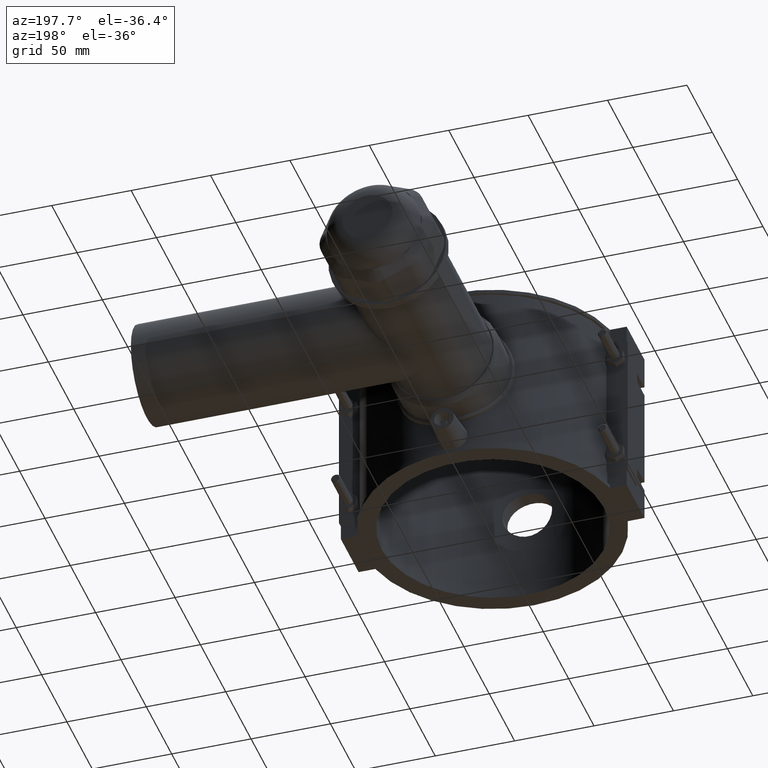
[diagram: clean part render]
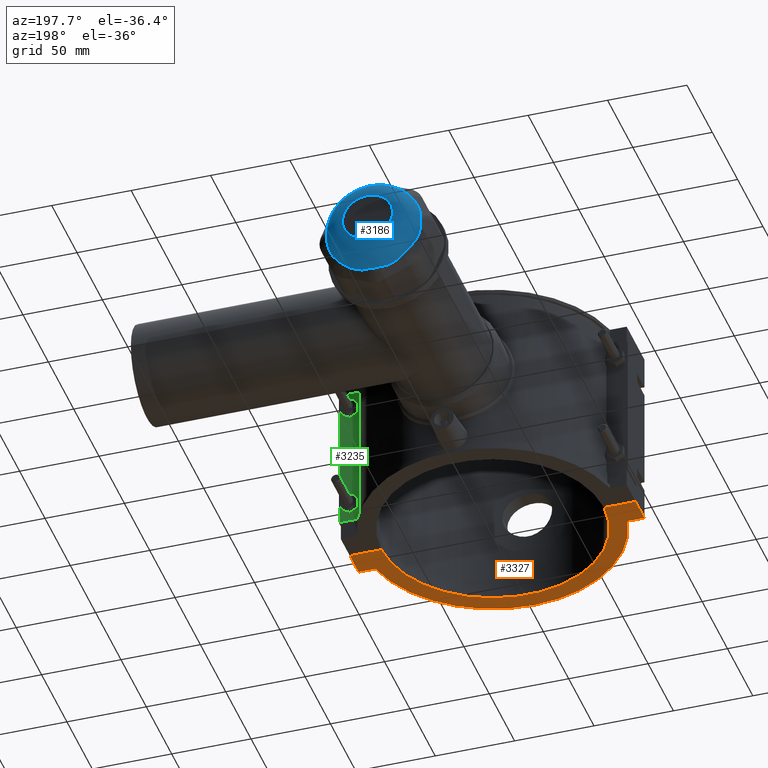
[diagram: same view with three faces highlighted in distinct colors, each labeled with its STEP entity id]
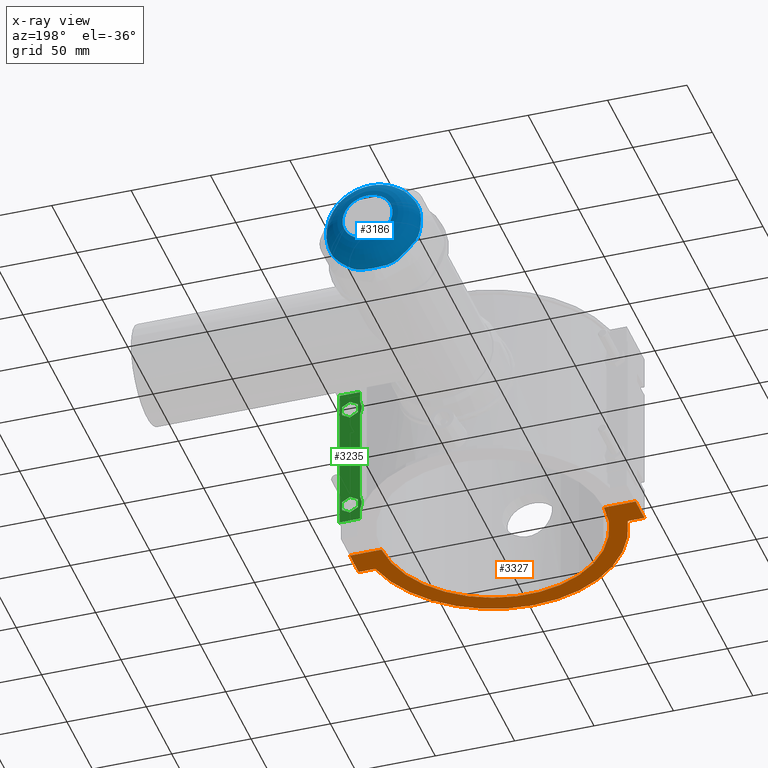
[diagram: x-ray of the same camera — body ghosted, the three highlighted faces saturated]
A machine part, auxiliary view with three faces highlighted in distinct colors.
The next image is the same camera in x-ray (body ghosted, the three faces saturated) — at least one of them is partly hidden behind the body in this view.
Their STEP definitions:

[orange] entity #3327 — the highlighted planar face has unit normal (0, 0, 1).
#125=LINE('',#5617,#412);
#144=LINE('',#5788,#431);
#270=LINE('',#6445,#557);
#311=LINE('',#6715,#598);
#316=LINE('',#6724,#603);
#319=LINE('',#6734,#606);
#412=VECTOR('',#3955,10.5074920762969);
#431=VECTOR('',#4008,10.5074920762969);
#557=VECTOR('',#4342,17.45);
#598=VECTOR('',#4479,20.0000178571451);
#603=VECTOR('',#4488,17.45);
#606=VECTOR('',#4501,20.0000178571452);
#955=FACE_OUTER_BOUND('',#1200,.T.);
#1200=EDGE_LOOP('',(#2951,#2952,#2953,#2954,#2955,#2956,#2957,#2958));
#1259=CIRCLE('',#3445,81.396);
#1324=CIRCLE('',#3626,70.);
#1417=VERTEX_POINT('',#5546);
#1418=VERTEX_POINT('',#5547);
#1438=VERTEX_POINT('',#5615);
#1467=VERTEX_POINT('',#5787);
#1590=VERTEX_POINT('',#6443);
#1628=VERTEX_POINT('',#6712);
#1629=VERTEX_POINT('',#6714);
#1632=VERTEX_POINT('',#6728);
#1768=EDGE_CURVE('',#1417,#1418,#1259,.T.);
#1792=EDGE_CURVE('',#1417,#1438,#125,.T.);
#1827=EDGE_CURVE('',#1467,#1418,#144,.T.);
#2008=EDGE_CURVE('',#1438,#1590,#270,.T.);
#2074=EDGE_CURVE('',#1629,#1628,#311,.T.);
#2079=EDGE_CURVE('',#1628,#1467,#316,.T.);
#2081=EDGE_CURVE('',#1632,#1629,#1324,.T.);
#2084=EDGE_CURVE('',#1590,#1632,#319,.T.);
#2951=ORIENTED_EDGE('',*,*,#2074,.T.);
#2952=ORIENTED_EDGE('',*,*,#2079,.T.);
#2953=ORIENTED_EDGE('',*,*,#1827,.T.);
#2954=ORIENTED_EDGE('',*,*,#1768,.F.);
#2955=ORIENTED_EDGE('',*,*,#1792,.T.);
#2956=ORIENTED_EDGE('',*,*,#2008,.T.);
#2957=ORIENTED_EDGE('',*,*,#2084,.T.);
#2958=ORIENTED_EDGE('',*,*,#2081,.T.);
#3137=PLANE('',#3628);
#3327=ADVANCED_FACE('',(#955),#3137,.F.);
#3445=AXIS2_PLACEMENT_3D('',#5548,#3922,#3923);
#3626=AXIS2_PLACEMENT_3D('',#6729,#4494,#4495);
#3628=AXIS2_PLACEMENT_3D('',#6733,#4499,#4500);
#3922=DIRECTION('center_axis',(0.,0.,1.));
#3923=DIRECTION('ref_axis',(-0.976614427290077,-0.21499828001376,0.));
#3955=DIRECTION('',(-1.,0.,0.));
#4008=DIRECTION('',(-1.,0.,0.));
#4342=DIRECTION('',(0.,1.,0.));
#4479=DIRECTION('',(1.,1.92747052886312E-19,0.));
#4488=DIRECTION('',(0.,-1.,0.));
#4494=DIRECTION('center_axis',(0.,0.,1.));
#4495=DIRECTION('ref_axis',(-1.,0.,0.));
#4499=DIRECTION('center_axis',(0.,0.,1.));
#4500=DIRECTION('ref_axis',(1.,0.,0.));
#4501=DIRECTION('',(1.,1.92747052886312E-19,0.));
#5546=CARTESIAN_POINT('',(-79.4925079237031,-17.5,-59.));
#5547=CARTESIAN_POINT('',(79.4925079237031,-17.5,-59.));
#5548=CARTESIAN_POINT('Origin',(0.,0.,-59.));
#5615=CARTESIAN_POINT('',(-90.,-17.5,-59.));
#5617=CARTESIAN_POINT('',(-90.,-17.5,-59.));
#5787=CARTESIAN_POINT('',(90.,-17.5,-59.));
#5788=CARTESIAN_POINT('',(77.8574980332659,-17.5,-59.));
#6443=CARTESIAN_POINT('',(-90.,-0.0500000000000078,-59.));
#6445=CARTESIAN_POINT('',(-90.,17.5,-59.));
#6712=CARTESIAN_POINT('',(90.,-0.0500000000000078,-59.));
#6714=CARTESIAN_POINT('',(69.9999821428549,-0.0500000000000078,-59.));
#6715=CARTESIAN_POINT('',(-87.4661928866538,-0.0500000000000078,-59.));
#6724=CARTESIAN_POINT('',(90.,-17.5,-59.));
#6728=CARTESIAN_POINT('',(-69.9999821428549,-0.0500000000000078,-59.));
#6729=CARTESIAN_POINT('Origin',(0.,0.,-59.));
#6733=CARTESIAN_POINT('Origin',(-84.9323857733075,3.14881777612425E-16,
-59.));
#6734=CARTESIAN_POINT('',(-87.4661928866538,-0.0500000000000078,-59.));

[blue] entity #3186 — the highlighted toroidal blend (fillet) surface has major radius 15.7729 mm and minor (blend) radius 14 mm.
#20=TOROIDAL_SURFACE('',#3413,15.7728831169074,14.);
#622=FACE_BOUND('',#1014,.T.);
#675=B_SPLINE_CURVE_WITH_KNOTS('',3,(#4857,#4858,#4859,#4860,#4861,#4862,
#4863,#4864,#4865,#4866,#4867),.UNSPECIFIED.,.F.,.F.,(4,2,3,2,4),(-0.739140793571753,
-0.439138566436394,0.,0.439138566436393,0.739140793571752),
 .UNSPECIFIED.);
#676=B_SPLINE_CURVE_WITH_KNOTS('',3,(#4886,#4887,#4888,#4889,#4890,#4891,
#4892,#4893,#4894,#4895,#4896),.UNSPECIFIED.,.F.,.F.,(4,2,3,2,4),(-0.739140793571748,
-0.439138566436393,0.,0.439138566436393,0.739140793571747),
 .UNSPECIFIED.);
#677=B_SPLINE_CURVE_WITH_KNOTS('',3,(#4912,#4913,#4914,#4915,#4916,#4917,
#4918,#4919,#4920,#4921,#4922),.UNSPECIFIED.,.F.,.F.,(4,2,3,2,4),(-0.739140793571746,
-0.439138566436392,0.,0.439138566436392,0.739140793571746),
 .UNSPECIFIED.);
#678=B_SPLINE_CURVE_WITH_KNOTS('',3,(#4938,#4939,#4940,#4941,#4942,#4943,
#4944,#4945,#4946,#4947,#4948),.UNSPECIFIED.,.F.,.F.,(4,2,3,2,4),(-0.739140793571746,
-0.439138566436398,0.,0.439138566436398,0.739140793571746),
 .UNSPECIFIED.);
#679=B_SPLINE_CURVE_WITH_KNOTS('',3,(#4964,#4965,#4966,#4967,#4968,#4969,
#4970,#4971,#4972,#4973,#4974),.UNSPECIFIED.,.F.,.F.,(4,2,3,2,4),(-0.739140793571751,
-0.439138566436399,0.,0.439138566436399,0.73914079357175),.UNSPECIFIED.);
#680=B_SPLINE_CURVE_WITH_KNOTS('',3,(#4990,#4991,#4992,#4993,#4994,#4995,
#4996,#4997,#4998,#4999,#5000),.UNSPECIFIED.,.F.,.F.,(4,2,3,2,4),(-0.739140793571746,
-0.439138566436396,0.,0.439138566436396,0.739140793571745),
 .UNSPECIFIED.);
#681=B_SPLINE_CURVE_WITH_KNOTS('',3,(#5016,#5017,#5018,#5019,#5020,#5021,
#5022,#5023,#5024,#5025,#5026),.UNSPECIFIED.,.F.,.F.,(4,2,3,2,4),(-0.739140793571747,
-0.439138566436401,0.,0.439138566436402,0.739140793571747),
 .UNSPECIFIED.);
#682=B_SPLINE_CURVE_WITH_KNOTS('',3,(#5042,#5043,#5044,#5045,#5046,#5047,
#5048,#5049,#5050,#5051,#5052),.UNSPECIFIED.,.F.,.F.,(4,2,3,2,4),(-0.739140793571748,
-0.439138566436392,0.,0.439138566436392,0.739140793571747),
 .UNSPECIFIED.);
#814=FACE_OUTER_BOUND('',#1013,.T.);
#1013=EDGE_LOOP('',(#2254,#2255,#2256,#2257,#2258,#2259,#2260,#2261,#2262,
#2263,#2264,#2265,#2266,#2267,#2268,#2269));
#1014=EDGE_LOOP('',(#2270));
#1233=CIRCLE('',#3382,29.68);
#1234=CIRCLE('',#3384,29.68);
#1235=CIRCLE('',#3386,29.68);
#1236=CIRCLE('',#3388,29.68);
#1237=CIRCLE('',#3390,29.68);
#1238=CIRCLE('',#3392,29.68);
#1239=CIRCLE('',#3394,29.68);
#1240=CIRCLE('',#3396,29.68);
#1247=CIRCLE('',#3414,15.7728831169074);
#1336=VERTEX_POINT('',#4855);
#1337=VERTEX_POINT('',#4856);
#1344=VERTEX_POINT('',#4884);
#1345=VERTEX_POINT('',#4885);
#1350=VERTEX_POINT('',#4910);
#1351=VERTEX_POINT('',#4911);
#1356=VERTEX_POINT('',#4936);
#1357=VERTEX_POINT('',#4937);
#1362=VERTEX_POINT('',#4962);
#1363=VERTEX_POINT('',#4963);
#1368=VERTEX_POINT('',#4988);
#1369=VERTEX_POINT('',#4989);
#1374=VERTEX_POINT('',#5014);
#1375=VERTEX_POINT('',#5015);
#1380=VERTEX_POINT('',#5040);
#1381=VERTEX_POINT('',#5041);
#1395=VERTEX_POINT('',#5119);
#1645=EDGE_CURVE('',#1336,#1337,#675,.T.);
#1654=EDGE_CURVE('',#1344,#1345,#676,.T.);
#1662=EDGE_CURVE('',#1350,#1351,#677,.T.);
#1670=EDGE_CURVE('',#1356,#1357,#678,.T.);
#1678=EDGE_CURVE('',#1362,#1363,#679,.T.);
#1686=EDGE_CURVE('',#1368,#1369,#680,.T.);
#1694=EDGE_CURVE('',#1374,#1375,#681,.T.);
#1702=EDGE_CURVE('',#1380,#1381,#682,.T.);
#1709=EDGE_CURVE('',#1357,#1350,#1233,.T.);
#1710=EDGE_CURVE('',#1351,#1344,#1234,.T.);
#1711=EDGE_CURVE('',#1345,#1336,#1235,.T.);
#1712=EDGE_CURVE('',#1337,#1380,#1236,.T.);
#1713=EDGE_CURVE('',#1381,#1374,#1237,.T.);
#1714=EDGE_CURVE('',#1375,#1368,#1238,.T.);
#1715=EDGE_CURVE('',#1369,#1362,#1239,.T.);
#1716=EDGE_CURVE('',#1363,#1356,#1240,.T.);
#1736=EDGE_CURVE('',#1395,#1395,#1247,.T.);
#2254=ORIENTED_EDGE('',*,*,#1711,.T.);
#2255=ORIENTED_EDGE('',*,*,#1645,.T.);
#2256=ORIENTED_EDGE('',*,*,#1712,.T.);
#2257=ORIENTED_EDGE('',*,*,#1702,.T.);
#2258=ORIENTED_EDGE('',*,*,#1713,.T.);
#2259=ORIENTED_EDGE('',*,*,#1694,.T.);
#2260=ORIENTED_EDGE('',*,*,#1714,.T.);
#2261=ORIENTED_EDGE('',*,*,#1686,.T.);
#2262=ORIENTED_EDGE('',*,*,#1715,.T.);
#2263=ORIENTED_EDGE('',*,*,#1678,.T.);
#2264=ORIENTED_EDGE('',*,*,#1716,.T.);
#2265=ORIENTED_EDGE('',*,*,#1670,.T.);
#2266=ORIENTED_EDGE('',*,*,#1709,.T.);
#2267=ORIENTED_EDGE('',*,*,#1662,.T.);
#2268=ORIENTED_EDGE('',*,*,#1710,.T.);
#2269=ORIENTED_EDGE('',*,*,#1654,.T.);
#2270=ORIENTED_EDGE('',*,*,#1736,.T.);
#3186=ADVANCED_FACE('',(#814,#622),#20,.T.);
#3382=AXIS2_PLACEMENT_3D('',#5063,#3768,#3769);
#3384=AXIS2_PLACEMENT_3D('',#5065,#3772,#3773);
#3386=AXIS2_PLACEMENT_3D('',#5067,#3776,#3777);
#3388=AXIS2_PLACEMENT_3D('',#5069,#3780,#3781);
#3390=AXIS2_PLACEMENT_3D('',#5071,#3784,#3785);
#3392=AXIS2_PLACEMENT_3D('',#5073,#3788,#3789);
#3394=AXIS2_PLACEMENT_3D('',#5075,#3792,#3793);
#3396=AXIS2_PLACEMENT_3D('',#5077,#3796,#3797);
#3413=AXIS2_PLACEMENT_3D('',#5118,#3843,#3844);
#3414=AXIS2_PLACEMENT_3D('',#5120,#3845,#3846);
#3768=DIRECTION('center_axis',(0.,1.,3.06161699786838E-16));
#3769=DIRECTION('ref_axis',(1.,0.,0.));
#3772=DIRECTION('center_axis',(0.,1.,3.06161699786838E-16));
#3773=DIRECTION('ref_axis',(1.,0.,0.));
#3776=DIRECTION('center_axis',(0.,1.,3.06161699786838E-16));
#3777=DIRECTION('ref_axis',(1.,0.,0.));
#3780=DIRECTION('center_axis',(0.,1.,3.06161699786838E-16));
#3781=DIRECTION('ref_axis',(1.,0.,0.));
#3784=DIRECTION('center_axis',(0.,1.,3.06161699786838E-16));
#3785=DIRECTION('ref_axis',(1.,0.,0.));
#3788=DIRECTION('center_axis',(0.,1.,3.06161699786838E-16));
#3789=DIRECTION('ref_axis',(1.,0.,0.));
#3792=DIRECTION('center_axis',(0.,1.,3.06161699786838E-16));
#3793=DIRECTION('ref_axis',(1.,0.,0.));
#3796=DIRECTION('center_axis',(0.,1.,3.06161699786838E-16));
#3797=DIRECTION('ref_axis',(1.,0.,0.));
#3843=DIRECTION('center_axis',(0.,1.,3.06161699786838E-16));
#3844=DIRECTION('ref_axis',(-6.12323399573676E-17,0.,1.));
#3845=DIRECTION('center_axis',(0.,-1.,-3.06161699786838E-16));
#3846=DIRECTION('ref_axis',(-6.12323399573676E-17,-2.81552336727856E-16,
1.));
#4855=CARTESIAN_POINT('',(-3.90184513577027,234.61,-29.422406504847));
#4856=CARTESIAN_POINT('',(-18.0457620037616,234.61,-23.5638043130474));
#4857=CARTESIAN_POINT('Ctrl Pts',(-3.90184513577026,234.61,-29.422406504847));
#4858=CARTESIAN_POINT('Ctrl Pts',(-4.90075242815156,234.318690946782,-29.3239562038666));
#4859=CARTESIAN_POINT('Ctrl Pts',(-5.94830201251474,234.077546375748,-29.1510599615955));
#4860=CARTESIAN_POINT('Ctrl Pts',(-8.51875498828115,233.641468335236,-28.5583509473597));
#4861=CARTESIAN_POINT('Ctrl Pts',(-10.0374816359602,233.522812847651,-28.0577055466373));
#4862=CARTESIAN_POINT('Ctrl Pts',(-11.38985208085,233.522812847651,-27.4975353670114));
#4863=CARTESIAN_POINT('Ctrl Pts',(-12.7422225257398,233.522812847651,-26.9373651873856));
#4864=CARTESIAN_POINT('Ctrl Pts',(-14.170134194903,233.641468335236,-26.2174730338637));
#4865=CARTESIAN_POINT('Ctrl Pts',(-16.4068274880251,234.077546375748,-24.8189968672146));
#4866=CARTESIAN_POINT('Ctrl Pts',(-17.269813008109,234.318690946782,-24.2005235578338));
#4867=CARTESIAN_POINT('Ctrl Pts',(-18.0457620037616,234.61,-23.5638043130474));
#4884=CARTESIAN_POINT('',(18.0457620037616,234.61,-23.5638043130474));
#4885=CARTESIAN_POINT('',(3.90184513577035,234.61,-29.422406504847));
#4886=CARTESIAN_POINT('Ctrl Pts',(18.0457620037616,234.61,-23.5638043130474));
#4887=CARTESIAN_POINT('Ctrl Pts',(17.269813008109,234.318690946782,-24.2005235578338));
#4888=CARTESIAN_POINT('Ctrl Pts',(16.4068274880251,234.077546375748,-24.8189968672146));
#4889=CARTESIAN_POINT('Ctrl Pts',(14.1701341949031,233.641468335236,-26.2174730338637));
#4890=CARTESIAN_POINT('Ctrl Pts',(12.7422225257398,233.522812847651,-26.9373651873855));
#4891=CARTESIAN_POINT('Ctrl Pts',(11.38985208085,233.522812847651,-27.4975353670114));
#4892=CARTESIAN_POINT('Ctrl Pts',(10.0374816359602,233.522812847651,-28.0577055466373));
#4893=CARTESIAN_POINT('Ctrl Pts',(8.51875498828118,233.641468335236,-28.5583509473597));
#4894=CARTESIAN_POINT('Ctrl Pts',(5.94830201251479,234.077546375748,-29.1510599615955));
#4895=CARTESIAN_POINT('Ctrl Pts',(4.90075242815164,234.318690946782,-29.3239562038666));
#4896=CARTESIAN_POINT('Ctrl Pts',(3.90184513577035,234.61,-29.422406504847));
#4910=CARTESIAN_POINT('',(29.422406504847,234.61,-3.90184513577027));
#4911=CARTESIAN_POINT('',(23.5638043130475,234.61,-18.0457620037615));
#4912=CARTESIAN_POINT('Ctrl Pts',(29.422406504847,234.61,-3.90184513577026));
#4913=CARTESIAN_POINT('Ctrl Pts',(29.3239562038666,234.318690946782,-4.90075242815154));
#4914=CARTESIAN_POINT('Ctrl Pts',(29.1510599615956,234.077546375748,-5.94830201251471));
#4915=CARTESIAN_POINT('Ctrl Pts',(28.5583509473598,233.641468335236,-8.51875498828109));
#4916=CARTESIAN_POINT('Ctrl Pts',(28.0577055466374,233.522812847651,-10.0374816359602));
#4917=CARTESIAN_POINT('Ctrl Pts',(27.4975353670115,233.522812847651,-11.3898520808499));
#4918=CARTESIAN_POINT('Ctrl Pts',(26.9373651873856,233.522812847651,-12.7422225257397));
#4919=CARTESIAN_POINT('Ctrl Pts',(26.2174730338637,233.641468335236,-14.170134194903));
#4920=CARTESIAN_POINT('Ctrl Pts',(24.8189968672147,234.077546375748,-16.406827488025));
#4921=CARTESIAN_POINT('Ctrl Pts',(24.2005235578339,234.318690946782,-17.2698130081089));
#4922=CARTESIAN_POINT('Ctrl Pts',(23.5638043130475,234.61,-18.0457620037615));
#4936=CARTESIAN_POINT('',(23.5638043130475,234.61,18.0457620037616));
#4937=CARTESIAN_POINT('',(29.422406504847,234.61,3.90184513577041));
#4938=CARTESIAN_POINT('Ctrl Pts',(23.5638043130475,234.61,18.0457620037616));
#4939=CARTESIAN_POINT('Ctrl Pts',(24.2005235578339,234.318690946782,17.2698130081091));
#4940=CARTESIAN_POINT('Ctrl Pts',(24.8189968672146,234.077546375748,16.4068274880252));
#4941=CARTESIAN_POINT('Ctrl Pts',(26.2174730338637,233.641468335236,14.1701341949031));
#4942=CARTESIAN_POINT('Ctrl Pts',(26.9373651873856,233.522812847651,12.7422225257398));
#4943=CARTESIAN_POINT('Ctrl Pts',(27.4975353670115,233.522812847651,11.3898520808501));
#4944=CARTESIAN_POINT('Ctrl Pts',(28.0577055466374,233.522812847651,10.0374816359603));
#4945=CARTESIAN_POINT('Ctrl Pts',(28.5583509473598,233.641468335236,8.5187549882812));
#4946=CARTESIAN_POINT('Ctrl Pts',(29.1510599615956,234.077546375748,5.94830201251481));
#4947=CARTESIAN_POINT('Ctrl Pts',(29.3239562038666,234.318690946782,4.90075242815167));
#4948=CARTESIAN_POINT('Ctrl Pts',(29.422406504847,234.61,3.90184513577041));
#4962=CARTESIAN_POINT('',(3.90184513577028,234.61,29.4224065048471));
#4963=CARTESIAN_POINT('',(18.0457620037616,234.61,23.5638043130475));
#4964=CARTESIAN_POINT('Ctrl Pts',(3.90184513577027,234.61,29.4224065048471));
#4965=CARTESIAN_POINT('Ctrl Pts',(4.90075242815156,234.318690946782,29.3239562038667));
#4966=CARTESIAN_POINT('Ctrl Pts',(5.94830201251471,234.077546375748,29.1510599615956));
#4967=CARTESIAN_POINT('Ctrl Pts',(8.51875498828111,233.641468335236,28.5583509473599));
#4968=CARTESIAN_POINT('Ctrl Pts',(10.0374816359602,233.522812847651,28.0577055466374));
#4969=CARTESIAN_POINT('Ctrl Pts',(11.38985208085,233.522812847651,27.4975353670115));
#4970=CARTESIAN_POINT('Ctrl Pts',(12.7422225257398,233.522812847651,26.9373651873857));
#4971=CARTESIAN_POINT('Ctrl Pts',(14.1701341949031,233.641468335236,26.2174730338637));
#4972=CARTESIAN_POINT('Ctrl Pts',(16.4068274880251,234.077546375748,24.8189968672147));
#4973=CARTESIAN_POINT('Ctrl Pts',(17.269813008109,234.318690946782,24.2005235578339));
#4974=CARTESIAN_POINT('Ctrl Pts',(18.0457620037616,234.61,23.5638043130475));
#4988=CARTESIAN_POINT('',(-18.0457620037616,234.61,23.5638043130475));
#4989=CARTESIAN_POINT('',(-3.90184513577035,234.61,29.4224065048471));
#4990=CARTESIAN_POINT('Ctrl Pts',(-18.0457620037616,234.61,23.5638043130475));
#4991=CARTESIAN_POINT('Ctrl Pts',(-17.269813008109,234.318690946782,24.2005235578339));
#4992=CARTESIAN_POINT('Ctrl Pts',(-16.4068274880251,234.077546375748,24.8189968672147));
#4993=CARTESIAN_POINT('Ctrl Pts',(-14.1701341949031,233.641468335236,26.2174730338637));
#4994=CARTESIAN_POINT('Ctrl Pts',(-12.7422225257398,233.522812847651,26.9373651873856));
#4995=CARTESIAN_POINT('Ctrl Pts',(-11.38985208085,233.522812847651,27.4975353670115));
#4996=CARTESIAN_POINT('Ctrl Pts',(-10.0374816359602,233.522812847651,28.0577055466374));
#4997=CARTESIAN_POINT('Ctrl Pts',(-8.51875498828114,233.641468335236,28.5583509473598));
#4998=CARTESIAN_POINT('Ctrl Pts',(-5.94830201251477,234.077546375748,29.1510599615956));
#4999=CARTESIAN_POINT('Ctrl Pts',(-4.90075242815162,234.318690946782,29.3239562038667));
#5000=CARTESIAN_POINT('Ctrl Pts',(-3.90184513577035,234.61,29.4224065048471));
#5014=CARTESIAN_POINT('',(-29.422406504847,234.61,3.90184513577037));
#5015=CARTESIAN_POINT('',(-23.5638043130475,234.61,18.0457620037616));
#5016=CARTESIAN_POINT('Ctrl Pts',(-29.422406504847,234.61,3.90184513577036));
#5017=CARTESIAN_POINT('Ctrl Pts',(-29.3239562038666,234.318690946782,4.90075242815164));
#5018=CARTESIAN_POINT('Ctrl Pts',(-29.1510599615956,234.077546375748,5.94830201251477));
#5019=CARTESIAN_POINT('Ctrl Pts',(-28.5583509473598,233.641468335236,8.51875498828115));
#5020=CARTESIAN_POINT('Ctrl Pts',(-28.0577055466374,233.522812847651,10.0374816359602));
#5021=CARTESIAN_POINT('Ctrl Pts',(-27.4975353670115,233.522812847651,11.38985208085));
#5022=CARTESIAN_POINT('Ctrl Pts',(-26.9373651873856,233.522812847651,12.7422225257398));
#5023=CARTESIAN_POINT('Ctrl Pts',(-26.2174730338637,233.641468335236,14.1701341949031));
#5024=CARTESIAN_POINT('Ctrl Pts',(-24.8189968672146,234.077546375748,16.4068274880252));
#5025=CARTESIAN_POINT('Ctrl Pts',(-24.2005235578339,234.318690946782,17.2698130081091));
#5026=CARTESIAN_POINT('Ctrl Pts',(-23.5638043130475,234.61,18.0457620037616));
#5040=CARTESIAN_POINT('',(-23.5638043130475,234.61,-18.0457620037615));
#5041=CARTESIAN_POINT('',(-29.422406504847,234.61,-3.90184513577028));
#5042=CARTESIAN_POINT('Ctrl Pts',(-23.5638043130475,234.61,-18.0457620037615));
#5043=CARTESIAN_POINT('Ctrl Pts',(-24.2005235578339,234.318690946782,-17.2698130081089));
#5044=CARTESIAN_POINT('Ctrl Pts',(-24.8189968672147,234.077546375748,-16.406827488025));
#5045=CARTESIAN_POINT('Ctrl Pts',(-26.2174730338637,233.641468335236,-14.170134194903));
#5046=CARTESIAN_POINT('Ctrl Pts',(-26.9373651873856,233.522812847651,-12.7422225257397));
#5047=CARTESIAN_POINT('Ctrl Pts',(-27.4975353670115,233.522812847651,-11.3898520808499));
#5048=CARTESIAN_POINT('Ctrl Pts',(-28.0577055466374,233.522812847651,-10.0374816359602));
#5049=CARTESIAN_POINT('Ctrl Pts',(-28.5583509473598,233.641468335236,-8.51875498828111));
#5050=CARTESIAN_POINT('Ctrl Pts',(-29.1510599615956,234.077546375748,-5.94830201251472));
#5051=CARTESIAN_POINT('Ctrl Pts',(-29.3239562038666,234.318690946782,-4.90075242815156));
#5052=CARTESIAN_POINT('Ctrl Pts',(-29.422406504847,234.61,-3.90184513577027));
#5063=CARTESIAN_POINT('Origin',(0.,234.61,5.03972774019115E-14));
#5065=CARTESIAN_POINT('Origin',(0.,234.61,5.03972774019115E-14));
#5067=CARTESIAN_POINT('Origin',(0.,234.61,5.03972774019115E-14));
#5069=CARTESIAN_POINT('Origin',(0.,234.61,5.03972774019115E-14));
#5071=CARTESIAN_POINT('Origin',(0.,234.61,5.03972774019115E-14));
#5073=CARTESIAN_POINT('Origin',(0.,234.61,5.03972774019115E-14));
#5075=CARTESIAN_POINT('Origin',(0.,234.61,5.03972774019115E-14));
#5077=CARTESIAN_POINT('Origin',(0.,234.61,5.03972774019115E-14));
#5118=CARTESIAN_POINT('Origin',(0.,233.,4.99043570652546E-14));
#5119=CARTESIAN_POINT('',(2.89743162336689E-15,247.,-15.7728831169073));
#5120=CARTESIAN_POINT('Origin',(0.,247.,5.41906208622704E-14));

[green] entity #3235 — the highlighted planar face has unit normal (0, 1, 0).
#141=LINE('',#5688,#428);
#142=LINE('',#5701,#429);
#143=LINE('',#5714,#430);
#195=LINE('',#6046,#482);
#196=LINE('',#6048,#483);
#197=LINE('',#6079,#484);
#198=LINE('',#6082,#485);
#199=LINE('',#6084,#486);
#200=LINE('',#6086,#487);
#201=LINE('',#6088,#488);
#202=LINE('',#6090,#489);
#203=LINE('',#6091,#490);
#204=LINE('',#6094,#491);
#205=LINE('',#6096,#492);
#206=LINE('',#6098,#493);
#207=LINE('',#6100,#494);
#208=LINE('',#6102,#495);
#209=LINE('',#6103,#496);
#428=VECTOR('',#4001,5.76263824369603);
#429=VECTOR('',#4002,58.725276487392);
#430=VECTOR('',#4003,5.76263824369602);
#482=VECTOR('',#4103,94.4);
#483=VECTOR('',#4106,12.8740378481529);
#484=VECTOR('',#4111,12.8740378481529);
#485=VECTOR('',#4112,5.77350269189626);
#486=VECTOR('',#4113,5.77350269189626);
#487=VECTOR('',#4114,5.77350269189627);
#488=VECTOR('',#4115,5.77350269189625);
#489=VECTOR('',#4116,5.77350269189625);
#490=VECTOR('',#4117,5.77350269189627);
#491=VECTOR('',#4118,5.77350269189627);
#492=VECTOR('',#4119,5.77350269189624);
#493=VECTOR('',#4120,5.77350269189626);
#494=VECTOR('',#4121,5.77350269189626);
#495=VECTOR('',#4122,5.77350269189626);
#496=VECTOR('',#4123,5.77350269189626);
#637=FACE_BOUND('',#1078,.T.);
#638=FACE_BOUND('',#1079,.T.);
#704=B_SPLINE_CURVE_WITH_KNOTS('',3,(#6050,#6051,#6052,#6053,#6054,#6055),
 .UNSPECIFIED.,.F.,.F.,(4,2,4),(-0.350550771120855,-0.181216293577892,0.),
 .UNSPECIFIED.);
#705=B_SPLINE_CURVE_WITH_KNOTS('',3,(#6058,#6059,#6060,#6061,#6062,#6063),
 .UNSPECIFIED.,.F.,.F.,(4,2,4),(-0.352212270426485,-0.166195704153647,0.),
 .UNSPECIFIED.);
#706=B_SPLINE_CURVE_WITH_KNOTS('',3,(#6065,#6066,#6067,#6068,#6069,#6070),
 .UNSPECIFIED.,.F.,.F.,(4,2,4),(-0.350550771120381,-0.181216293715411,0.),
 .UNSPECIFIED.);
#707=B_SPLINE_CURVE_WITH_KNOTS('',3,(#6073,#6074,#6075,#6076,#6077,#6078),
 .UNSPECIFIED.,.F.,.F.,(4,2,4),(-0.352212270425811,-0.166195704084295,0.),
 .UNSPECIFIED.);
#863=FACE_OUTER_BOUND('',#1077,.T.);
#1077=EDGE_LOOP('',(#2530,#2531,#2532,#2533,#2534,#2535,#2536,#2537,#2538,
#2539,#2540,#2541));
#1078=EDGE_LOOP('',(#2542,#2543,#2544,#2545,#2546,#2547));
#1079=EDGE_LOOP('',(#2548,#2549,#2550,#2551,#2552,#2553));
#1280=CIRCLE('',#3493,7.5);
#1281=CIRCLE('',#3494,7.5);
#1459=VERTEX_POINT('',#5685);
#1460=VERTEX_POINT('',#5687);
#1461=VERTEX_POINT('',#5689);
#1462=VERTEX_POINT('',#5700);
#1463=VERTEX_POINT('',#5702);
#1464=VERTEX_POINT('',#5713);
#1511=VERTEX_POINT('',#6039);
#1514=VERTEX_POINT('',#6044);
#1515=VERTEX_POINT('',#6049);
#1516=VERTEX_POINT('',#6056);
#1517=VERTEX_POINT('',#6064);
#1518=VERTEX_POINT('',#6071);
#1519=VERTEX_POINT('',#6080);
#1520=VERTEX_POINT('',#6081);
#1521=VERTEX_POINT('',#6083);
#1522=VERTEX_POINT('',#6085);
#1523=VERTEX_POINT('',#6087);
#1524=VERTEX_POINT('',#6089);
#1525=VERTEX_POINT('',#6092);
#1526=VERTEX_POINT('',#6093);
#1527=VERTEX_POINT('',#6095);
#1528=VERTEX_POINT('',#6097);
#1529=VERTEX_POINT('',#6099);
#1530=VERTEX_POINT('',#6101);
#1819=EDGE_CURVE('',#1459,#1460,#141,.T.);
#1821=EDGE_CURVE('',#1461,#1462,#142,.T.);
#1823=EDGE_CURVE('',#1463,#1464,#143,.T.);
#1892=EDGE_CURVE('',#1514,#1511,#195,.T.);
#1893=EDGE_CURVE('',#1464,#1514,#196,.T.);
#1894=EDGE_CURVE('',#1515,#1463,#704,.T.);
#1895=EDGE_CURVE('',#1516,#1515,#1280,.T.);
#1896=EDGE_CURVE('',#1462,#1516,#705,.T.);
#1897=EDGE_CURVE('',#1517,#1461,#706,.T.);
#1898=EDGE_CURVE('',#1518,#1517,#1281,.T.);
#1899=EDGE_CURVE('',#1460,#1518,#707,.T.);
#1900=EDGE_CURVE('',#1511,#1459,#197,.T.);
#1901=EDGE_CURVE('',#1519,#1520,#198,.T.);
#1902=EDGE_CURVE('',#1521,#1519,#199,.T.);
#1903=EDGE_CURVE('',#1522,#1521,#200,.T.);
#1904=EDGE_CURVE('',#1523,#1522,#201,.T.);
#1905=EDGE_CURVE('',#1524,#1523,#202,.T.);
#1906=EDGE_CURVE('',#1520,#1524,#203,.T.);
#1907=EDGE_CURVE('',#1525,#1526,#204,.T.);
#1908=EDGE_CURVE('',#1527,#1525,#205,.T.);
#1909=EDGE_CURVE('',#1528,#1527,#206,.T.);
#1910=EDGE_CURVE('',#1529,#1528,#207,.T.);
#1911=EDGE_CURVE('',#1530,#1529,#208,.T.);
#1912=EDGE_CURVE('',#1526,#1530,#209,.T.);
#2530=ORIENTED_EDGE('',*,*,#1892,.F.);
#2531=ORIENTED_EDGE('',*,*,#1893,.F.);
#2532=ORIENTED_EDGE('',*,*,#1823,.F.);
#2533=ORIENTED_EDGE('',*,*,#1894,.F.);
#2534=ORIENTED_EDGE('',*,*,#1895,.F.);
#2535=ORIENTED_EDGE('',*,*,#1896,.F.);
#2536=ORIENTED_EDGE('',*,*,#1821,.F.);
#2537=ORIENTED_EDGE('',*,*,#1897,.F.);
#2538=ORIENTED_EDGE('',*,*,#1898,.F.);
#2539=ORIENTED_EDGE('',*,*,#1899,.F.);
#2540=ORIENTED_EDGE('',*,*,#1819,.F.);
#2541=ORIENTED_EDGE('',*,*,#1900,.F.);
#2542=ORIENTED_EDGE('',*,*,#1901,.F.);
#2543=ORIENTED_EDGE('',*,*,#1902,.F.);
#2544=ORIENTED_EDGE('',*,*,#1903,.F.);
#2545=ORIENTED_EDGE('',*,*,#1904,.F.);
#2546=ORIENTED_EDGE('',*,*,#1905,.F.);
#2547=ORIENTED_EDGE('',*,*,#1906,.F.);
#2548=ORIENTED_EDGE('',*,*,#1907,.F.);
#2549=ORIENTED_EDGE('',*,*,#1908,.F.);
#2550=ORIENTED_EDGE('',*,*,#1909,.F.);
#2551=ORIENTED_EDGE('',*,*,#1910,.F.);
#2552=ORIENTED_EDGE('',*,*,#1911,.F.);
#2553=ORIENTED_EDGE('',*,*,#1912,.F.);
#3078=PLANE('',#3492);
#3235=ADVANCED_FACE('',(#863,#637,#638),#3078,.T.);
#3492=AXIS2_PLACEMENT_3D('',#6047,#4104,#4105);
#3493=AXIS2_PLACEMENT_3D('',#6057,#4107,#4108);
#3494=AXIS2_PLACEMENT_3D('',#6072,#4109,#4110);
#4001=DIRECTION('',(0.,0.,-1.));
#4002=DIRECTION('',(0.,0.,-1.));
#4003=DIRECTION('',(0.,0.,-1.));
#4103=DIRECTION('',(0.,0.,1.));
#4104=DIRECTION('center_axis',(0.,1.,0.));
#4105=DIRECTION('ref_axis',(-1.,0.,0.));
#4106=DIRECTION('',(1.,0.,0.));
#4107=DIRECTION('center_axis',(0.,-1.,0.));
#4108=DIRECTION('ref_axis',(-1.,0.,0.));
#4109=DIRECTION('center_axis',(0.,-1.,0.));
#4110=DIRECTION('ref_axis',(-1.,0.,0.));
#4111=DIRECTION('',(-1.,0.,0.));
#4112=DIRECTION('',(-0.866025403784439,0.,-0.5));
#4113=DIRECTION('',(0.,0.,-1.));
#4114=DIRECTION('',(0.866025403784439,0.,-0.499999999999999));
#4115=DIRECTION('',(0.866025403784439,0.,0.5));
#4116=DIRECTION('',(0.,0.,1.));
#4117=DIRECTION('',(-0.866025403784438,0.,0.5));
#4118=DIRECTION('',(-0.866025403784439,0.,0.499999999999999));
#4119=DIRECTION('',(-0.866025403784438,0.,-0.500000000000002));
#4120=DIRECTION('',(0.,0.,-1.));
#4121=DIRECTION('',(0.866025403784438,0.,-0.5));
#4122=DIRECTION('',(0.866025403784438,0.,0.5));
#4123=DIRECTION('',(0.,0.,1.));
#5685=CARTESIAN_POINT('',(77.6259621518471,18.5000000000001,47.2));
#5687=CARTESIAN_POINT('',(77.6259621518473,18.4999999999995,41.437361756304));
#5688=CARTESIAN_POINT('',(77.6259621518471,18.5000000000001,0.));
#5689=CARTESIAN_POINT('',(77.6259621518473,18.4999999999995,29.362638243696));
#5700=CARTESIAN_POINT('',(77.6259621518473,18.4999999999995,-29.362638243696));
#5701=CARTESIAN_POINT('',(77.6259621518471,18.5000000000001,0.));
#5702=CARTESIAN_POINT('',(77.6259621518473,18.4999999999995,-41.437361756304));
#5713=CARTESIAN_POINT('',(77.6259621518471,18.5000000000001,-47.2));
#5714=CARTESIAN_POINT('',(77.6259621518471,18.5000000000001,0.));
#6039=CARTESIAN_POINT('',(90.5,18.5000000000001,47.2));
#6044=CARTESIAN_POINT('',(90.5,18.5000000000001,-47.2));
#6046=CARTESIAN_POINT('',(90.5,18.5000000000001,0.));
#6047=CARTESIAN_POINT('Origin',(91.,18.5000000000001,0.));
#6048=CARTESIAN_POINT('',(91.,18.5000000000001,-47.2));
#6049=CARTESIAN_POINT('',(76.9707700952654,18.499999999995,-38.015325399713));
#6050=CARTESIAN_POINT('Ctrl Pts',(76.970770095264,18.5000000000001,-38.0153253997094));
#6051=CARTESIAN_POINT('Ctrl Pts',(77.1685552943051,18.5000000000001,-38.546914178669));
#6052=CARTESIAN_POINT('Ctrl Pts',(77.327789331016,18.5000000000199,-39.0858212611868));
#6053=CARTESIAN_POINT('Ctrl Pts',(77.5609313559878,18.5000000000199,-40.232465687123));
#6054=CARTESIAN_POINT('Ctrl Pts',(77.6259621518471,18.5000000000001,-40.8333074443772));
#6055=CARTESIAN_POINT('Ctrl Pts',(77.6259621518471,18.5000000000001,-41.4373617563035));
#6056=CARTESIAN_POINT('',(76.9707700952654,18.499999999995,-32.784674600287));
#6057=CARTESIAN_POINT('Origin',(84.,18.5000000000001,-35.4));
#6058=CARTESIAN_POINT('Ctrl Pts',(77.6259621518471,18.5000000000001,-29.3626382436965));
#6059=CARTESIAN_POINT('Ctrl Pts',(77.6259621518471,18.5000000000001,-29.9797433680138));
#6060=CARTESIAN_POINT('Ctrl Pts',(77.5581000311223,18.5000000000007,-30.5933968803905));
#6061=CARTESIAN_POINT('Ctrl Pts',(77.3203881570297,18.5000000000007,-31.7391762492706));
#6062=CARTESIAN_POINT('Ctrl Pts',(77.1639504714398,18.5000000000001,-32.2654622386571));
#6063=CARTESIAN_POINT('Ctrl Pts',(76.970770095264,18.5000000000001,-32.7846746002907));
#6064=CARTESIAN_POINT('',(76.9707700952654,18.499999999995,32.784674600287));
#6065=CARTESIAN_POINT('Ctrl Pts',(76.970770095264,18.5000000000001,32.7846746002906));
#6066=CARTESIAN_POINT('Ctrl Pts',(77.1685552941433,18.5000000000001,32.2530858217658));
#6067=CARTESIAN_POINT('Ctrl Pts',(77.3277893307568,18.5000000000199,31.7141787396915));
#6068=CARTESIAN_POINT('Ctrl Pts',(77.5609313558894,18.5000000000199,30.5675343137856));
#6069=CARTESIAN_POINT('Ctrl Pts',(77.6259621518471,18.5000000000001,29.9666925560812));
#6070=CARTESIAN_POINT('Ctrl Pts',(77.6259621518471,18.5000000000001,29.3626382436965));
#6071=CARTESIAN_POINT('',(76.9707700952654,18.499999999995,38.015325399713));
#6072=CARTESIAN_POINT('Origin',(84.,18.5000000000001,35.4));
#6073=CARTESIAN_POINT('Ctrl Pts',(77.6259621518471,18.5000000000001,41.4373617563035));
#6074=CARTESIAN_POINT('Ctrl Pts',(77.6259621518471,18.5000000000001,40.8202566317576));
#6075=CARTESIAN_POINT('Ctrl Pts',(77.5581000310722,18.5000000000007,40.2066031191567));
#6076=CARTESIAN_POINT('Ctrl Pts',(77.3203881568998,18.5000000000007,39.0608237502917));
#6077=CARTESIAN_POINT('Ctrl Pts',(77.1639504713592,18.5000000000001,38.5345377611262));
#6078=CARTESIAN_POINT('Ctrl Pts',(76.970770095264,18.5000000000001,38.0153253997093));
#6079=CARTESIAN_POINT('',(91.,18.5000000000001,47.2));
#6080=CARTESIAN_POINT('',(89.0000000000001,18.5000000000001,32.5132486540519));
#6081=CARTESIAN_POINT('',(84.0000000000001,18.5000000000001,29.6264973081037));
#6082=CARTESIAN_POINT('',(82.7106751765078,18.5000000000001,28.8821052741876));
#6083=CARTESIAN_POINT('',(89.0000000000001,18.5000000000001,38.2867513459481));
#6084=CARTESIAN_POINT('',(89.0000000000001,18.5000000000001,19.1433756729741));
#6085=CARTESIAN_POINT('',(84.,18.5000000000001,41.1735026918963));
#6086=CARTESIAN_POINT('',(95.5393248234923,18.5000000000001,34.5112703987865));
#6087=CARTESIAN_POINT('',(79.,18.5000000000001,38.2867513459481));
#6088=CARTESIAN_POINT('',(75.2106751765077,18.5000000000001,36.0989836390579));
#6089=CARTESIAN_POINT('',(79.,18.5000000000001,32.5132486540519));
#6090=CARTESIAN_POINT('',(79.,18.5000000000001,16.2566243270259));
#6091=CARTESIAN_POINT('',(93.0393248234923,18.5000000000001,24.407640687968));
#6092=CARTESIAN_POINT('',(84.0000000000001,18.5000000000001,-41.1735026918963));
#6093=CARTESIAN_POINT('',(79.,18.5000000000001,-38.2867513459481));
#6094=CARTESIAN_POINT('',(77.7106751765078,18.5000000000001,-37.542359312032));
#6095=CARTESIAN_POINT('',(89.,18.5000000000001,-38.2867513459481));
#6096=CARTESIAN_POINT('',(98.0393248234923,18.5000000000001,-33.0678947258124));
#6097=CARTESIAN_POINT('',(89.,18.5000000000001,-32.5132486540519));
#6098=CARTESIAN_POINT('',(89.,18.5000000000001,-16.2566243270259));
#6099=CARTESIAN_POINT('',(84.,18.5000000000001,-29.6264973081037));
#6100=CARTESIAN_POINT('',(80.2106751765077,18.5000000000001,-27.4387296012135));
#6101=CARTESIAN_POINT('',(79.,18.5000000000001,-32.5132486540519));
#6102=CARTESIAN_POINT('',(90.5393248234923,18.5000000000001,-25.8510163609421));
#6103=CARTESIAN_POINT('',(79.,18.5000000000001,-19.1433756729741));